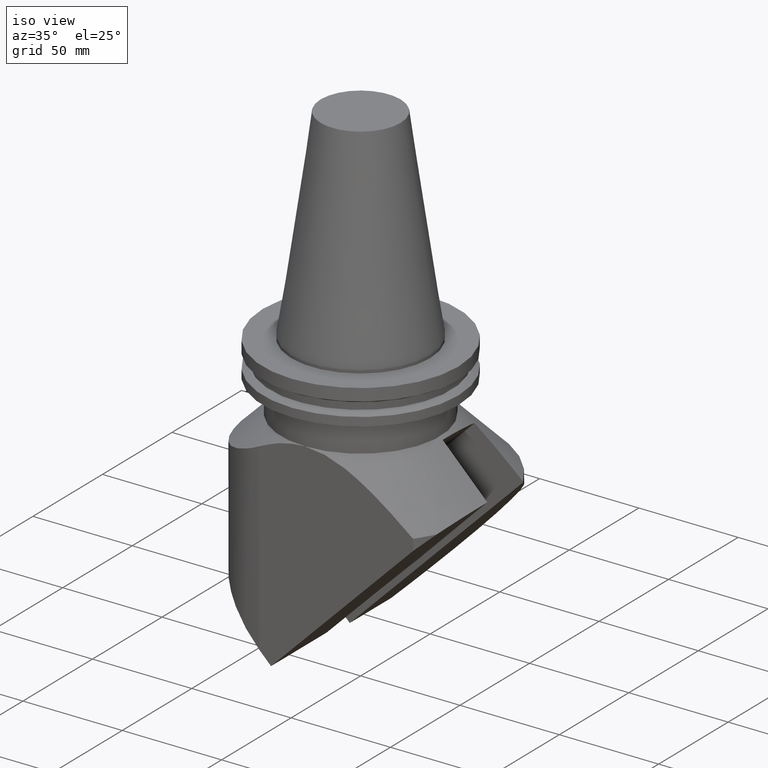
[diagram: clean part render]
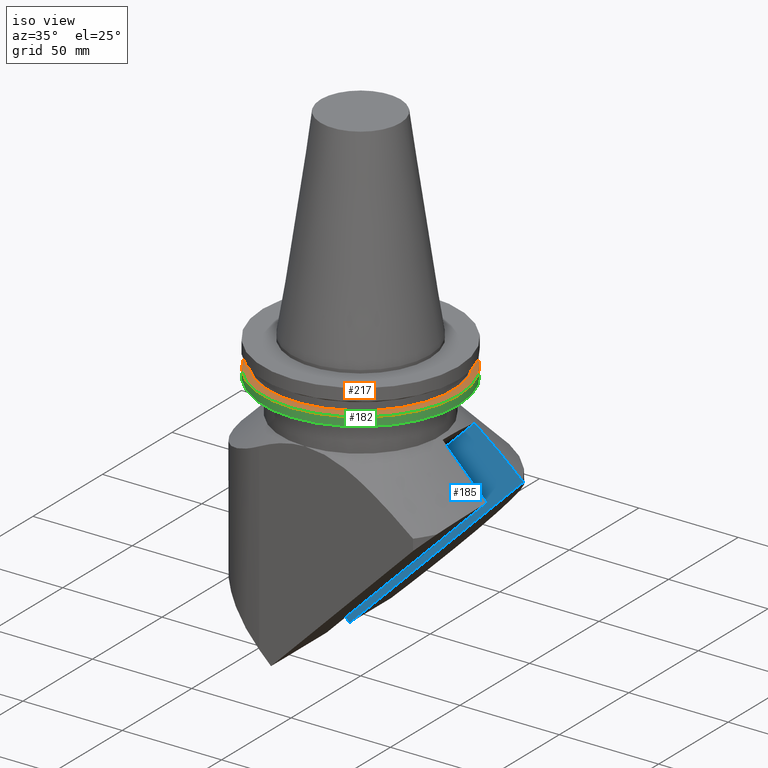
[diagram: same view with three faces highlighted in distinct colors, each labeled with its STEP entity id]
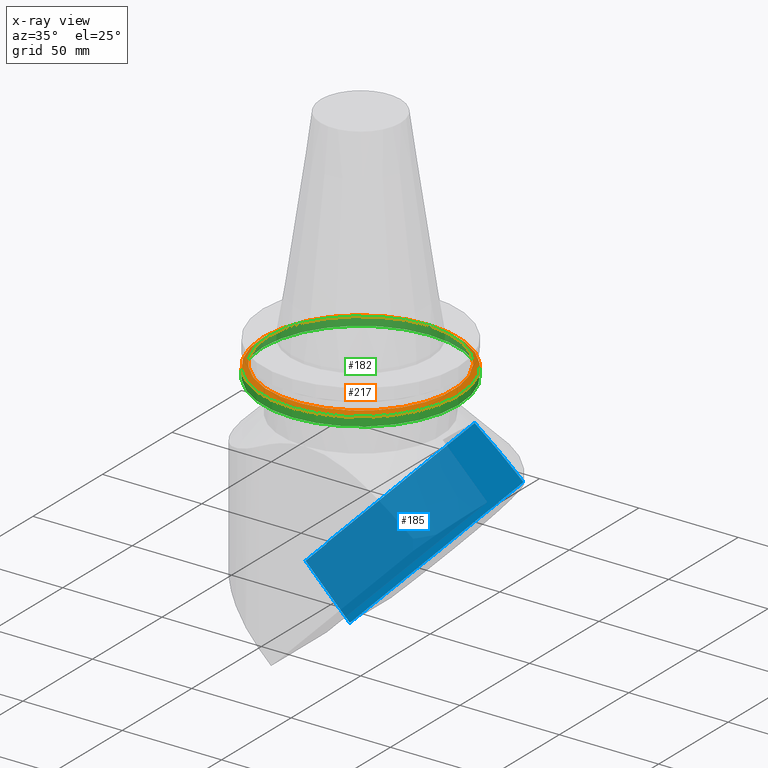
[diagram: x-ray of the same camera — body ghosted, the three highlighted faces saturated]
A machine part, iso view with three faces highlighted in distinct colors.
The next image is the same camera in x-ray (body ghosted, the three faces saturated) — at least one of them is partly hidden behind the body in this view.
Their STEP definitions:

[orange] entity #217 — the highlighted conical surface has half-angle 60 deg.
#177=EDGE_CURVE('Unnamed[1]',#436,#436,#437,.T.);
#217=ADVANCED_FACE('Unnamed[1]',(#490,#491),#492,.T.);
#310=EDGE_CURVE('Unnamed[1]',#609,#609,#610,.T.);
#436=VERTEX_POINT('',#793);
#437=CIRCLE('',#794,46.43053755);
#490=FACE_BOUND('',#898,.T.);
#491=FACE_BOUND('',#899,.T.);
#492=CONICAL_SURFACE('',#900,47.821518775,1.04719755103023);
#609=VERTEX_POINT('',#1096);
#610=CIRCLE('',#1097,49.2125);
#793=CARTESIAN_POINT('',(-46.4305375500019,1.77238390852718E-014,-13.0399999999992));
#794=AXIS2_PLACEMENT_3D('',#1212,#1213,#1214);
#898=EDGE_LOOP('',(#1285));
#899=EDGE_LOOP('',(#1286));
#900=AXIS2_PLACEMENT_3D('',#1287,#1288,#1289);
#1096=CARTESIAN_POINT('',(-49.2125000000019,1.86026379256365E-014,-14.6461667699992));
#1097=AXIS2_PLACEMENT_3D('',#1421,#1422,#1423);
#1212=CARTESIAN_POINT('',(-1.91103086463693E-012,-2.89546164822155E-015,-13.04));
#1213=DIRECTION('',(-1.60807529078777E-014,-2.22044604925024E-016,-1.0));
#1214=DIRECTION('',(-1.0,4.44089209850066E-016,1.60807529078777E-014));
#1285=ORIENTED_EDGE('',*,*,#310,.F.);
#1286=ORIENTED_EDGE('',*,*,#177,.T.);
#1287=CARTESIAN_POINT('',(-1.92394505011554E-012,-3.07378198116573E-015,-13.843083385));
#1288=DIRECTION('',(-1.60807529078777E-014,-2.22044604925024E-016,-1.0));
#1289=DIRECTION('',(-1.0,4.44089209850066E-016,1.60807529078777E-014));
#1421=CARTESIAN_POINT('',(-1.93685923559415E-012,-3.25210231410991E-015,-14.64616677));
#1422=DIRECTION('',(-1.60807529078777E-014,-2.22044604925024E-016,-1.0));
#1423=DIRECTION('',(-1.0,4.44089209850066E-016,1.60807529078777E-014));

[blue] entity #185 — the highlighted planar face has unit normal (0, 1, 0).
#113=EDGE_CURVE('Unnamed[1]',#333,#334,#335,.T.);
#146=EDGE_CURVE('Unnamed[1]',#388,#389,#390,.T.);
#167=EDGE_CURVE('Unnamed[1]',#334,#421,#422,.T.);
#171=EDGE_CURVE('Unnamed[1]',#346,#427,#428,.T.);
#185=ADVANCED_FACE('Unnamed[1]',(#447),#448,.F.);
#204=EDGE_CURVE('Unnamed[1]',#427,#333,#474,.T.);
#212=EDGE_CURVE('Unnamed[1]',#421,#388,#485,.T.);
#265=EDGE_CURVE('Unnamed[1]',#389,#346,#553,.T.);
#333=VERTEX_POINT('',#625);
#334=VERTEX_POINT('',#626);
#335=(B_SPLINE_CURVE(2,(#628,#629,#630),.UNSPECIFIED.,.F.,.F.)B_SPLINE_CURVE_WITH_KNOTS((3,3),(0.0,44.7367097655909),.UNSPECIFIED.)RATIONAL_B_SPLINE_CURVE((1.0,1.05847940210866,1.0))BOUNDED_CURVE()REPRESENTATION_ITEM('')GEOMETRIC_REPRESENTATION_ITEM()CURVE());
#346=VERTEX_POINT('',#650);
#388=VERTEX_POINT('',#706);
#389=VERTEX_POINT('',#707);
#390=LINE('',#708,#709);
#421=VERTEX_POINT('',#762);
#422=LINE('',#763,#764);
#427=VERTEX_POINT('',#771);
#428=LINE('',#772,#773);
#447=FACE_OUTER_BOUND('',#807,.T.);
#448=PLANE('',#808);
#474=LINE('',#845,#846);
#485=LINE('',#879,#880);
#553=LINE('',#1013,#1014);
#625=CARTESIAN_POINT('',(35.1775233057582,31.7500000000007,-43.0369471622416));
#626=CARTESIAN_POINT('',(59.5666643350096,31.7500000000006,-63.1500223208128));
#628=CARTESIAN_POINT('',(24.329765720195,31.7500000000007,-35.6500223208074));
#629=CARTESIAN_POINT('',(37.4412634747842,31.7500000000007,-43.6250140360598));
#630=CARTESIAN_POINT('',(59.5670183343972,31.7500000000006,-63.1503347145396));
#650=CARTESIAN_POINT('',(-39.3858477120931,31.7500000000016,-117.953871570686));
#706=CARTESIAN_POINT('',(-27.7185858225151,31.7500000000017,-150.83433689586));
#707=CARTESIAN_POINT('',(-49.9924494298913,31.7500000000017,-128.560473288484));
#708=CARTESIAN_POINT('',(-33.287051724359,31.7500000000017,-145.265870994017));
#709=VECTOR('',#1168,1.0);
#762=CARTESIAN_POINT('',(59.5666643350103,31.7500000000006,-63.549086738336));
#763=CARTESIAN_POINT('',(59.5666643350094,31.7500000000008,-106.992179608336));
#764=VECTOR('',#1204,1.0);
#771=CARTESIAN_POINT('',(-39.5626244073896,31.7500000000016,-117.777094875389));
#772=CARTESIAN_POINT('',(-31.6524539803848,31.7500000000016,-125.687265302397));
#773=VECTOR('',#1208,1.0);
#807=EDGE_LOOP('',(#1225,#1226,#1227,#1228,#1229,#1230,#1231));
#808=AXIS2_PLACEMENT_3D('',#1232,#1233,#1234);
#845=CARTESIAN_POINT('',(15.0260191002105,31.7500000000009,-63.1884513677893));
#846=VECTOR('',#1278,1.0);
#879=CARTESIAN_POINT('',(7.10624934293282,31.7500000000013,-116.009501730413));
#880=VECTOR('',#1283,1.0);
#1013=CARTESIAN_POINT('',(-35.3788263846893,31.7500000000016,-113.946850243282));
#1014=VECTOR('',#1347,1.0);
#1168=DIRECTION('',(-0.70710678118655,1.36619968816906E-015,0.707106781186545));
#1204=DIRECTION('',(-1.60807529078777E-014,-2.22044604925024E-016,-1.0));
#1208=DIRECTION('',(-0.707106781186443,1.36619968816772E-015,0.707106781186652));
#1225=ORIENTED_EDGE('',*,*,#171,.F.);
#1226=ORIENTED_EDGE('',*,*,#265,.F.);
#1227=ORIENTED_EDGE('',*,*,#146,.F.);
#1228=ORIENTED_EDGE('',*,*,#212,.F.);
#1229=ORIENTED_EDGE('',*,*,#167,.F.);
#1230=ORIENTED_EDGE('',*,*,#113,.F.);
#1231=ORIENTED_EDGE('',*,*,#204,.F.);
#1232=CARTESIAN_POINT('',(-3.79464059101006,31.7500000000014,-126.910391664356));
#1233=DIRECTION('',(7.2749712365854E-015,1.0,5.34287310866686E-015));
#1234=DIRECTION('',(-0.707106781186547,8.92216330048421E-015,-0.707106781186548));
#1278=DIRECTION('',(0.707106781186547,-8.92216330048421E-015,0.707106781186548));
#1283=DIRECTION('',(-0.707106781186551,8.92216330048422E-015,-0.707106781186544));
#1347=DIRECTION('',(0.707106781186544,-8.9221633004842E-015,0.707106781186551));

[green] entity #182 — the highlighted cylindrical surface (bore or boss wall) has radius 49.2125 mm, axis along (-0, -0, -1).
#182=ADVANCED_FACE('Unnamed[1]',(#442,#443),#444,.T.);
#234=EDGE_CURVE('Unnamed[1]',#513,#513,#514,.T.);
#310=EDGE_CURVE('Unnamed[1]',#609,#609,#610,.T.);
#442=FACE_BOUND('',#801,.T.);
#443=FACE_BOUND('',#802,.T.);
#444=CYLINDRICAL_SURFACE('',#803,49.2125);
#513=VERTEX_POINT('',#932);
#514=CIRCLE('',#933,49.2125);
#609=VERTEX_POINT('',#1096);
#610=CIRCLE('',#1097,49.2125);
#801=EDGE_LOOP('',(#1219));
#802=EDGE_LOOP('',(#1220));
#803=AXIS2_PLACEMENT_3D('',#1221,#1222,#1223);
#932=CARTESIAN_POINT('',(-49.212500000002,1.76247905159254E-014,-19.0499999999992));
#933=AXIS2_PLACEMENT_3D('',#1308,#1309,#1310);
#1096=CARTESIAN_POINT('',(-49.2125000000019,1.86026379256365E-014,-14.6461667699992));
#1097=AXIS2_PLACEMENT_3D('',#1421,#1422,#1423);
#1219=ORIENTED_EDGE('',*,*,#234,.F.);
#1220=ORIENTED_EDGE('',*,*,#310,.T.);
#1221=CARTESIAN_POINT('',(-1.97226771260371E-012,-3.74102601896543E-015,-16.848083385));
#1222=DIRECTION('',(-1.60807529078777E-014,-2.22044604925024E-016,-1.0));
#1223=DIRECTION('',(-1.0,4.44089209850066E-016,1.60807529078777E-014));
#1308=CARTESIAN_POINT('',(-2.00767618961328E-012,-4.22994972382096E-015,-19.05));
#1309=DIRECTION('',(-1.60807529078777E-014,-2.22044604925024E-016,-1.0));
#1310=DIRECTION('',(-1.0,4.44089209850066E-016,1.60807529078777E-014));
#1421=CARTESIAN_POINT('',(-1.93685923559415E-012,-3.25210231410991E-015,-14.64616677));
#1422=DIRECTION('',(-1.60807529078777E-014,-2.22044604925024E-016,-1.0));
#1423=DIRECTION('',(-1.0,4.44089209850066E-016,1.60807529078777E-014));